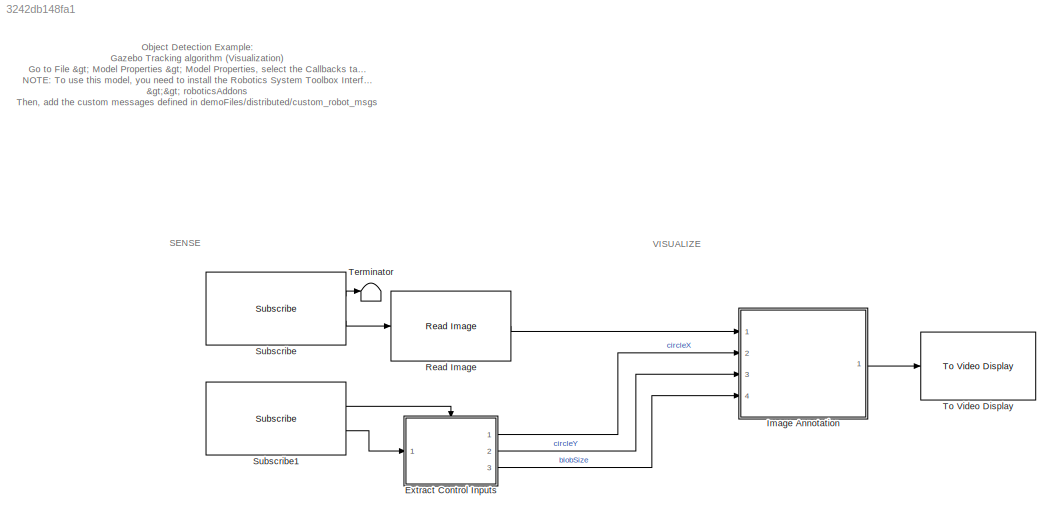
MODEL slx_3242db148fa1
KIND model
CONFIG AbsTol = auto
CONFIG EnableMultiTasking = on
CONFIG FixedStep = visualizationTs
CONFIG MaxStep = auto
CONFIG MinStep = auto
CONFIG PreLoadFcn = params = controlParamsGazebo;\n\n% Algorithm sample time\nvisualizationTs = 0.5;\n\nrosshutdown;\nloadIpAddresses;\nrosinit(gazeboIp);
CONFIG RelTol = 1e-3
CONFIG SampleTimeConstraint = Unconstrained
CONFIG Solver = FixedStepDiscrete
CONFIG SolverName = FixedStepDiscrete
CONFIG StartTime = 0.0
CONFIG StopTime = inf
WORKSPACE source: MAT-file member
WORKSPACE SL_ROS_VariableLengthArrays_MaxSizes: struct (value not decoded)
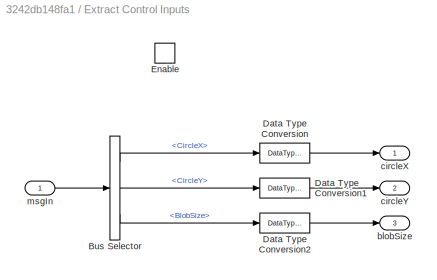
BLOCK [SubSystem] Extract Control Inputs
  Ports = [1, 3, 1]
  RequestExecContextInheritance = off
  TreatAsAtomicUnit = on
  Variant = off
BLOCK [BusSelector] Extract Control Inputs/Bus Selector
  OutputAsBus = off
  OutputSignals = CircleX,CircleY,BlobSize
  Ports = [1, 3]
BLOCK [DataTypeConversion] Extract Control Inputs/Data Type Conversion
  RndMeth = Floor
  SaturateOnIntegerOverflow = off
BLOCK [DataTypeConversion] Extract Control Inputs/Data Type Conversion1
  RndMeth = Floor
  SaturateOnIntegerOverflow = off
BLOCK [DataTypeConversion] Extract Control Inputs/Data Type Conversion2
  RndMeth = Floor
  SaturateOnIntegerOverflow = off
BLOCK [EnablePort] Extract Control Inputs/Enable
  Ports = []
BLOCK [Outport] Extract Control Inputs/blobSize
  IconDisplay = Port number
  Port = 3
BLOCK [Outport] Extract Control Inputs/circleX
  IconDisplay = Port number
BLOCK [Outport] Extract Control Inputs/circleY
  IconDisplay = Port number
  Port = 2
BLOCK [Inport] Extract Control Inputs/msgIn
  IconDisplay = Port number
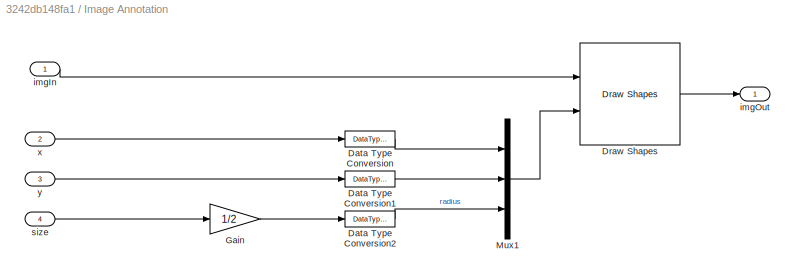
BLOCK [SubSystem] Image Annotation
  Ports = [4, 1]
  RequestExecContextInheritance = off
  Variant = off
BLOCK [DataTypeConversion] Image Annotation/Data Type Conversion
  OutDataTypeStr = int32
  RndMeth = Floor
  SaturateOnIntegerOverflow = off
BLOCK [DataTypeConversion] Image Annotation/Data Type Conversion1
  OutDataTypeStr = int32
  RndMeth = Floor
  SaturateOnIntegerOverflow = off
BLOCK [DataTypeConversion] Image Annotation/Data Type Conversion2
  OutDataTypeStr = int32
  RndMeth = Floor
  SaturateOnIntegerOverflow = off
BLOCK [Reference] Image Annotation/Draw Shapes  REF=visiontextngfix/Draw Shapes
  Ports = [2, 1]
  SourceBlock = visiontextngfix/Draw Shapes
  SourceProductBaseCode = VP
  SourceProductName = Computer Vision System Toolbox
  SourceType = Draw Shapes
BLOCK [Gain] Image Annotation/Gain
  Gain = 1/2
  OutDataTypeStr = Inherit: Inherit via internal rule
  ParamDataTypeStr = Inherit: Inherit via internal rule
  SaturateOnIntegerOverflow = off
BLOCK [Mux] Image Annotation/Mux1
  DisplayOption = bar
  Inputs = 3
  Ports = [3, 1]
BLOCK [Inport] Image Annotation/imgIn
  IconDisplay = Port number
BLOCK [Outport] Image Annotation/imgOut
  IconDisplay = Port number
BLOCK [Inport] Image Annotation/size
  IconDisplay = Port number
  Port = 4
BLOCK [Inport] Image Annotation/x
  IconDisplay = Port number
  Port = 2
BLOCK [Inport] Image Annotation/y
  IconDisplay = Port number
  Port = 3
BLOCK [Reference] Read Image  REF=robotlib/Read Image
  Ports = [1, 1]
  SourceBlock = robotlib/Read Image
  SourceLibraryInfo = This block requires Robotics System Toolbox
  SourceProductBaseCode = RO
  SourceProductName = Robotics System Toolbox
  SourceType = robotics.slros.internal.block.ReadImage
BLOCK [Reference] Subscribe  REF=robotlib/Subscribe
  Ports = [0, 2]
  SourceBlock = robotlib/Subscribe
  SourceLibraryInfo = This block requires Robotics System Toolbox
  SourceProductBaseCode = RO
  SourceProductName = Robotics System Toolbox
  SourceType = ROS Subscribe
BLOCK [Reference] Subscribe1  REF=robotlib/Subscribe
  Ports = [0, 2]
  SourceBlock = robotlib/Subscribe
  SourceLibraryInfo = This block requires Robotics System Toolbox
  SourceProductBaseCode = RO
  SourceProductName = Robotics System Toolbox
  SourceType = ROS Subscribe
BLOCK [Terminator] Terminator
BLOCK [Reference] To Video Display  REF=visionsinks/To Video Display
  Ports = [1]
  SourceBlock = visionsinks/To Video Display
  SourceProductBaseCode = VP
  SourceProductName = Computer Vision System Toolbox
  SourceType = To Video Display
ANNOTATION (root): Object Detection Example: Gazebo Tracking algorithm (Visualization) Go to File > Model Properties > Model Properties , select the Callbacks tab, and go to PreLoadFcn . Here, you can set up MATLAB code to run when loading the model, such as initalizing ROS with the correct IP address. NOTE: To use this model, you need to install the Robotics System Toolbox Interface for ROS Custom Messages by typin...<+135ch>
ANNOTATION (root): SENSE
ANNOTATION (root): VISUALIZE
LINE Extract Control Inputs/Bus Selector:1 -> Extract Control Inputs/Data Type Conversion:1
LINE Extract Control Inputs/Bus Selector:2 -> Extract Control Inputs/Data Type Conversion1:1
LINE Extract Control Inputs/Bus Selector:3 -> Extract Control Inputs/Data Type Conversion2:1
LINE Extract Control Inputs/Data Type Conversion1:1 -> Extract Control Inputs/circleY:1
LINE Extract Control Inputs/Data Type Conversion2:1 -> Extract Control Inputs/blobSize:1
LINE Extract Control Inputs/Data Type Conversion:1 -> Extract Control Inputs/circleX:1
LINE Extract Control Inputs/msgIn:1 -> Extract Control Inputs/Bus Selector:1
LINE Extract Control Inputs:1 -> Image Annotation:2
LINE Extract Control Inputs:2 -> Image Annotation:3
LINE Extract Control Inputs:3 -> Image Annotation:4
LINE Image Annotation/Data Type Conversion1:1 -> Image Annotation/Mux1:2
LINE Image Annotation/Data Type Conversion2:1 -> Image Annotation/Mux1:3
LINE Image Annotation/Data Type Conversion:1 -> Image Annotation/Mux1:1
LINE Image Annotation/Draw Shapes:1 -> Image Annotation/imgOut:1
LINE Image Annotation/Gain:1 -> Image Annotation/Data Type Conversion2:1
LINE Image Annotation/Mux1:1 -> Image Annotation/Draw Shapes:2
LINE Image Annotation/imgIn:1 -> Image Annotation/Draw Shapes:1
LINE Image Annotation/size:1 -> Image Annotation/Gain:1
LINE Image Annotation/x:1 -> Image Annotation/Data Type Conversion:1
LINE Image Annotation/y:1 -> Image Annotation/Data Type Conversion1:1
LINE Image Annotation:1 -> To Video Display:1
LINE Read Image:1 -> Image Annotation:1
LINE Subscribe1:1 -> Extract Control Inputs:enable
LINE Subscribe1:2 -> Extract Control Inputs:1
LINE Subscribe:1 -> Terminator:1
LINE Subscribe:2 -> Read Image:1
